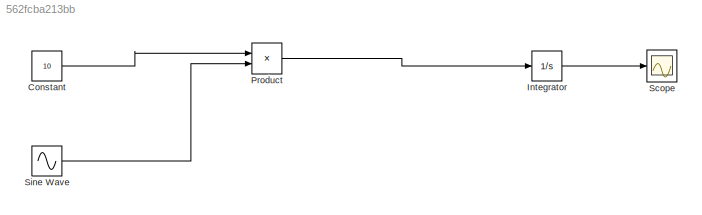
MODEL slx_562fcba213bb
KIND model
CONFIG AbsTol = auto
CONFIG EnableMultiTasking = off
CONFIG FixedStep = auto
CONFIG MaxStep = auto
CONFIG MinStep = auto
CONFIG RelTol = 1e-3
CONFIG SampleTimeConstraint = Unconstrained
CONFIG SolverName = VariableStepAuto
CONFIG StartTime = 0.0
CONFIG StopTime = 10.0
BLOCK [Constant] Constant
  Value = 10
BLOCK [Integrator] Integrator
  Ports = [1, 1]
BLOCK [Product] Product
  Ports = [2, 1]
BLOCK [Scope] Scope
  Floating = off
  NumInputPorts = 1
  Ports = [1]
  ScopeSpecificationString = Simulink.scopes.TimeScopeBlockCfg('CurrentConfiguration', extmgr.ConfigurationSet(extmgr.Configuration('Core','General UI',true),extmgr.Configuration('Core','Source UI',true),extmgr.Configuration('Sources','WiredSimulink',true),extmgr.Configuration('Visuals','Time Domain',true,'SerializedDisplays',{struct('MinYLimReal','-13.88017','MaxYLimReal','32.14502','YLabelReal','','MinYLimMag','0.00000','Ma...<+1384ch>
BLOCK [Sin] Sine Wave
  Ports = [0, 1]
  SampleTime = 0
LINE Constant:1 -> Product:1
LINE Integrator:1 -> Scope:1
LINE Product:1 -> Integrator:1
LINE Sine Wave:1 -> Product:2
